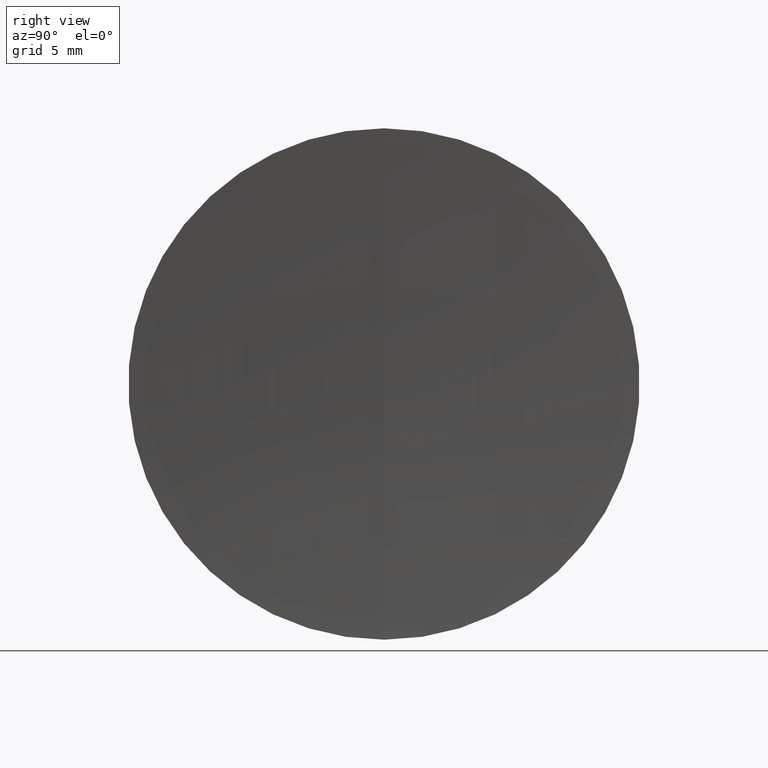
[diagram: clean part render]
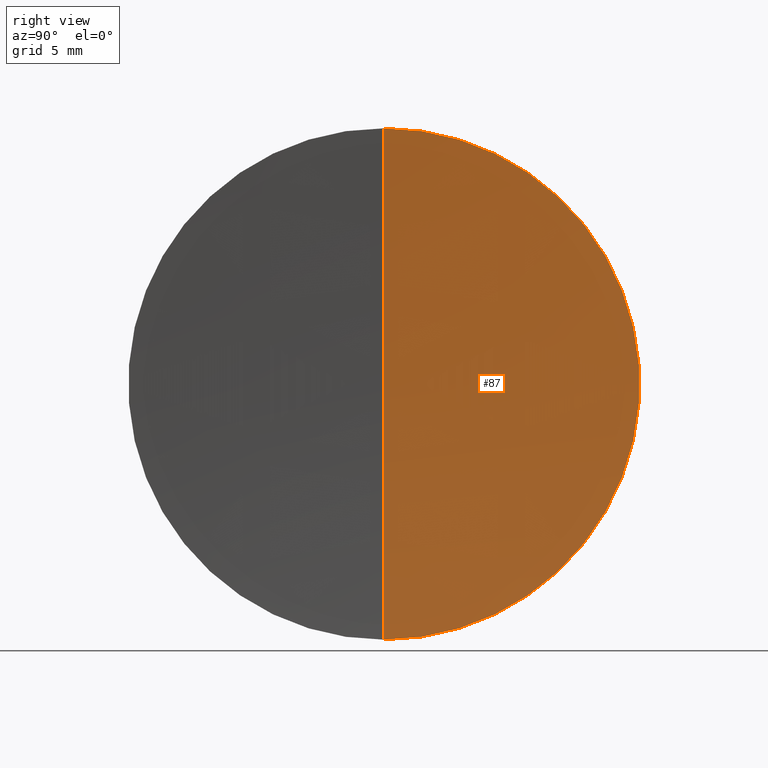
[diagram: same view with one face highlighted and labeled with its STEP entity id]
A machine part, right view. The second image highlights one B-rep face of the part: STEP entity #87.
In plain terms, the highlighted spherical surface has radius 181.55 mm.
Its self-contained STEP definition (entity closure, byte-faithful):
#3 = CARTESIAN_POINT ( 'NONE',  ( 371.5952472455173800, 1.555301434917140400E-015, -12.70000000000001500 ) ) ;
#22 = VERTEX_POINT ( 'NONE', #3 ) ;
#23 = CIRCLE ( 'NONE', #267, 181.5499999999999800 ) ;
#25 = CARTESIAN_POINT ( 'NONE',  ( 371.5952472455173800, 0.0000000000000000000, 12.70000000000001500 ) ) ;
#27 = DIRECTION ( 'NONE',  ( 0.0000000000000000000, -1.000000000000000000, -1.224646799147353200E-016 ) ) ;
#53 = DIRECTION ( 'NONE',  ( 0.0000000000000000000, 1.224646799147353200E-016, -1.000000000000000000 ) ) ;
#56 = AXIS2_PLACEMENT_3D ( 'NONE', #165, #264, #249 ) ;
#57 = DIRECTION ( 'NONE',  ( 0.0000000000000000000, 0.0000000000000000000, 1.000000000000000000 ) ) ;
#58 = DIRECTION ( 'NONE',  ( 0.0000000000000000000, 1.000000000000000000, -0.0000000000000000000 ) ) ;
#59 = CARTESIAN_POINT ( 'NONE',  ( 552.7004997922064100, 0.0000000000000000000, 0.0000000000000000000 ) ) ;
#60 = ORIENTED_EDGE ( 'NONE', *, *, #113, .F. ) ;
#67 = VERTEX_POINT ( 'NONE', #25 ) ;
#69 = CARTESIAN_POINT ( 'NONE',  ( 552.7004997922064100, 0.0000000000000000000, 0.0000000000000000000 ) ) ;
#87 = ADVANCED_FACE ( 'NONE', ( #168 ), #244, .F. ) ;
#105 = ORIENTED_EDGE ( 'NONE', *, *, #124, .T. ) ;
#113 = EDGE_CURVE ( 'NONE', #67, #22, #310, .T. ) ;
#124 = EDGE_CURVE ( 'NONE', #67, #305, #222, .T. ) ;
#127 = CARTESIAN_POINT ( 'NONE',  ( 371.1504997922064000, 0.0000000000000000000, -1.111673131926009800E-014 ) ) ;
#136 = AXIS2_PLACEMENT_3D ( 'NONE', #69, #27, #53 ) ;
#150 = EDGE_LOOP ( 'NONE', ( #60, #105, #207 ) ) ;
#165 = CARTESIAN_POINT ( 'NONE',  ( 552.7004997922064100, 0.0000000000000000000, 0.0000000000000000000 ) ) ;
#168 = FACE_OUTER_BOUND ( 'NONE', #150, .T. ) ;
#207 = ORIENTED_EDGE ( 'NONE', *, *, #247, .F. ) ;
#222 = CIRCLE ( 'NONE', #136, 181.5499999999999800 ) ;
#244 = SPHERICAL_SURFACE ( 'NONE', #56, 181.5499999999999800 ) ;
#247 = EDGE_CURVE ( 'NONE', #22, #305, #23, .T. ) ;
#249 = DIRECTION ( 'NONE',  ( 0.0000000000000000000, 0.0000000000000000000, -1.000000000000000000 ) ) ;
#264 = DIRECTION ( 'NONE',  ( -0.0000000000000000000, -1.000000000000000000, -0.0000000000000000000 ) ) ;
#267 = AXIS2_PLACEMENT_3D ( 'NONE', #59, #58, #57 ) ;
#293 = AXIS2_PLACEMENT_3D ( 'NONE', #303, #316, #315 ) ;
#303 = CARTESIAN_POINT ( 'NONE',  ( 371.5952472455173800, 0.0000000000000000000, 0.0000000000000000000 ) ) ;
#305 = VERTEX_POINT ( 'NONE', #127 ) ;
#310 = CIRCLE ( 'NONE', #293, 12.70000000000001500 ) ;
#315 = DIRECTION ( 'NONE',  ( 0.0000000000000000000, 0.0000000000000000000, 1.000000000000000000 ) ) ;
#316 = DIRECTION ( 'NONE',  ( -1.000000000000000000, -0.0000000000000000000, -0.0000000000000000000 ) ) ;